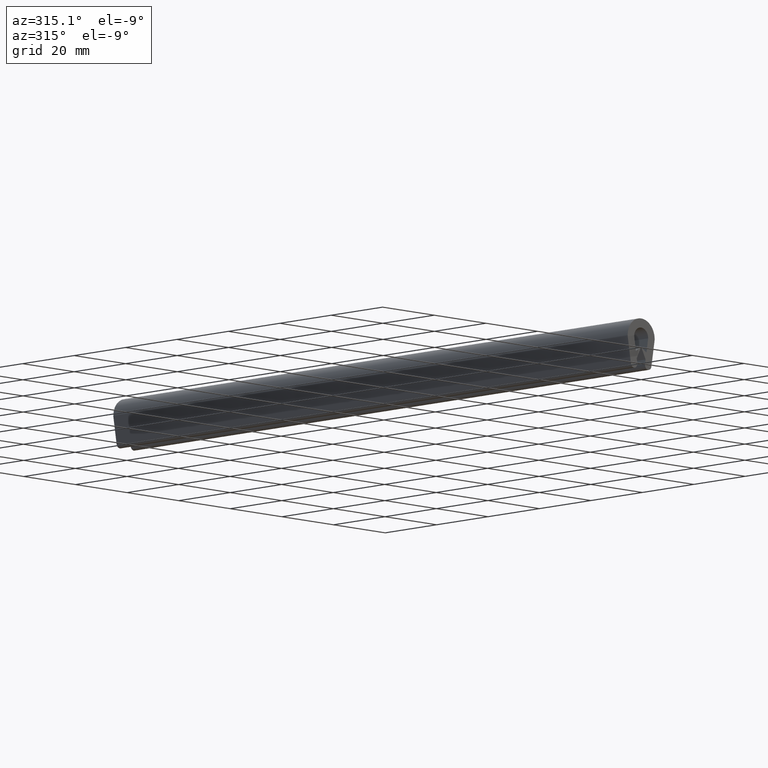
[diagram: clean part render]
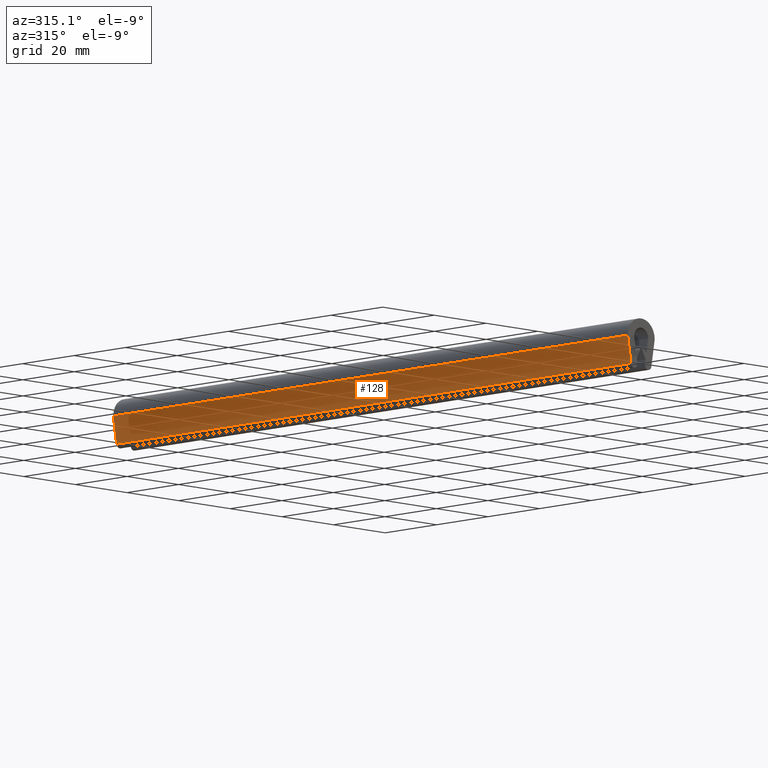
[diagram: same view with one face highlighted and labeled with its STEP entity id]
A machine part, auxiliary view. The second image highlights one B-rep face of the part: STEP entity #128.
In plain terms, the highlighted planar face has unit normal (-0.9864, 0, -0.1644).
Its self-contained STEP definition (entity closure, byte-faithful):
#128=ADVANCED_FACE('',(#309),#308,.T.);
#308=PLANE('',#573);
#309=FACE_OUTER_BOUND('',#574,.T.);
#570=CARTESIAN_POINT('',(-3.83759703849E+00,-1.00000000000E+01,-1.37260073598E+01));
#571=DIRECTION('',(-9.86398923087E-01,0.00000000000E+00,-1.64368988966E-01));
#572=DIRECTION('',(-1.64368988966E-01,0.00000000000E+00,9.86398923087E-01));
#573=AXIS2_PLACEMENT_3D('',#570,#571,#572);
#574=EDGE_LOOP('',(#760,#761,#762,#763));
#760=ORIENTED_EDGE('',*,*,#847,.F.);
#761=ORIENTED_EDGE('',*,*,#899,.F.);
#762=ORIENTED_EDGE('',*,*,#885,.T.);
#763=ORIENTED_EDGE('',*,*,#898,.T.);
#847=EDGE_CURVE('',#973,#980,#981,.T.);
#885=EDGE_CURVE('',#1238,#1231,#1239,.T.);
#898=EDGE_CURVE('',#1231,#980,#1322,.T.);
#899=EDGE_CURVE('',#1238,#973,#1328,.T.);
#973=VERTEX_POINT('',#1556);
#980=VERTEX_POINT('',#1561);
#981=LINE('',#1562,#1563);
#1231=VERTEX_POINT('',#1708);
#1238=VERTEX_POINT('',#1713);
#1239=LINE('',#1714,#1715);
#1322=LINE('',#1760,#1761);
#1328=LINE('',#1763,#1764);
#1556=CARTESIAN_POINT('',(-5.25000000000E+00,0.00000000000E+00,-5.25000000000E+00));
#1561=CARTESIAN_POINT('',(-3.96599730772E+00,0.00000000000E+00,-1.29554612362E+01));
#1562=CARTESIAN_POINT('',(-5.25000000000E+00,0.00000000000E+00,-5.25000000000E+00));
#1563=VECTOR('',#1564,7.81170888964E+00);
#1564=DIRECTION('',(1.64368988966E-01,0.00000000000E+00,-9.86398923087E-01));
#1708=CARTESIAN_POINT('',(-3.96599730772E+00,2.00000000000E+02,-1.29554612362E+01));
#1713=CARTESIAN_POINT('',(-5.25000000000E+00,2.00000000000E+02,-5.25000000000E+00));
#1714=CARTESIAN_POINT('',(-5.25000000000E+00,2.00000000000E+02,-5.25000000000E+00));
#1715=VECTOR('',#1716,7.81170888964E+00);
#1716=DIRECTION('',(1.64368988966E-01,0.00000000000E+00,-9.86398923087E-01));
#1760=CARTESIAN_POINT('',(-3.96599730772E+00,2.00000000000E+02,-1.29554612362E+01));
#1761=VECTOR('',#1762,2.00000000000E+02);
#1762=DIRECTION('',(0.00000000000E+00,-1.00000000000E+00,0.00000000000E+00));
#1763=CARTESIAN_POINT('',(-5.25000000000E+00,2.00000000000E+02,-5.25000000000E+00));
#1764=VECTOR('',#1765,2.00000000000E+02);
#1765=DIRECTION('',(0.00000000000E+00,-1.00000000000E+00,0.00000000000E+00));